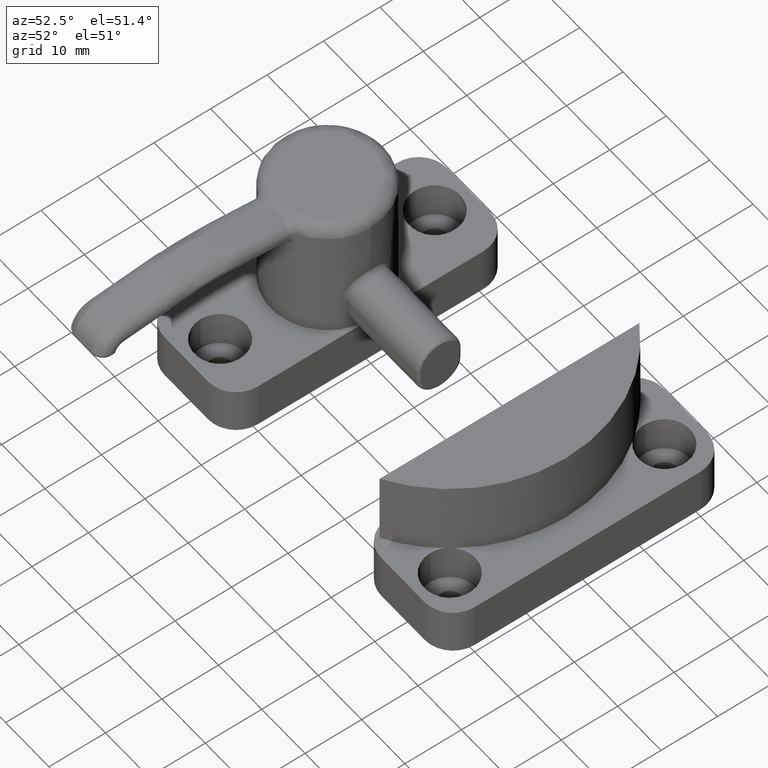
[diagram: clean part render]
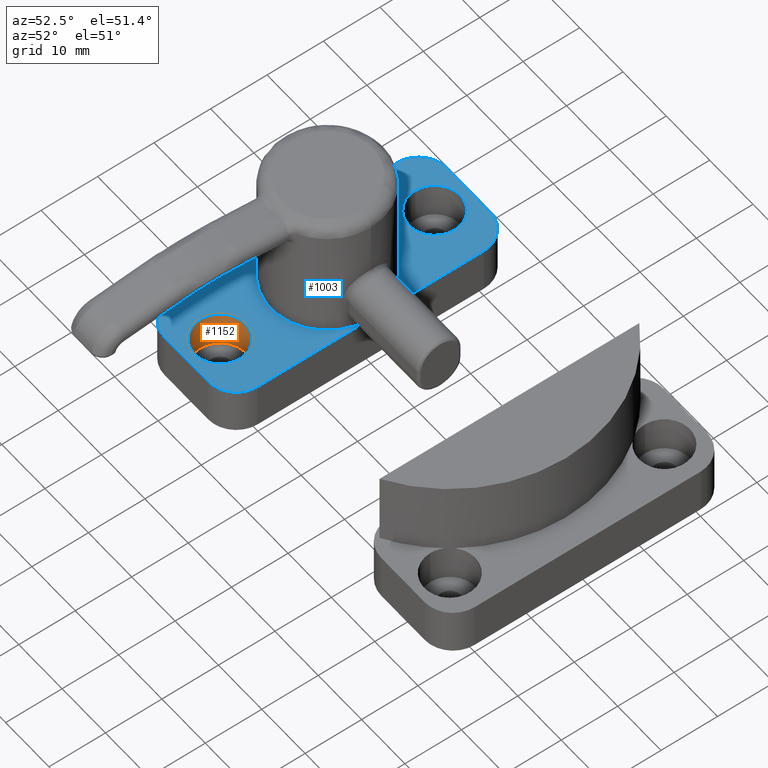
[diagram: same view with the hole feature highlighted: cylindrical wall and planar end face, labeled with their STEP entity ids]
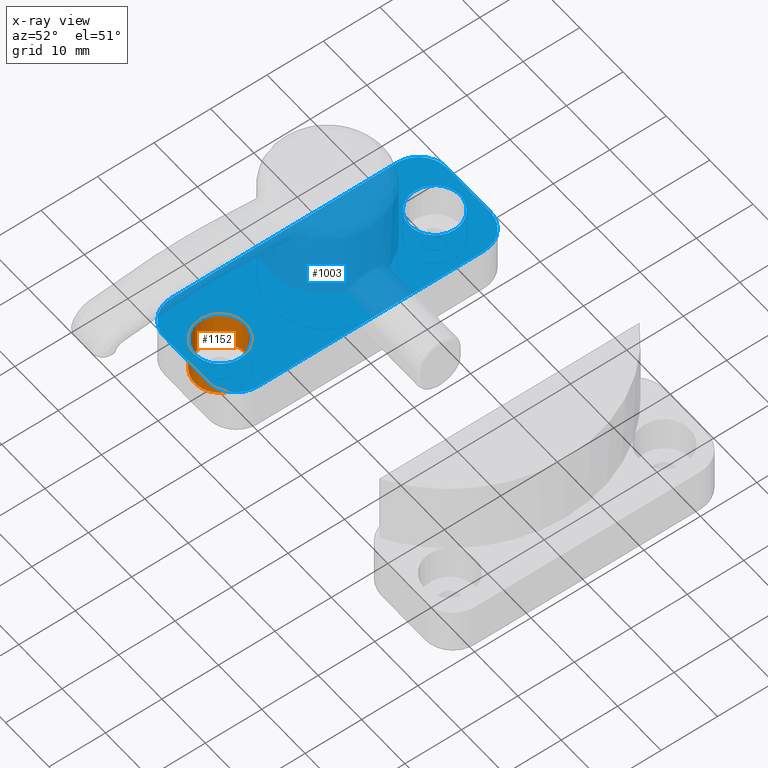
[diagram: x-ray of the same camera — body ghosted, the hole faces saturated]
A machine part, auxiliary view. The highlighted faces form one hole feature of diameter 9 mm: the cylindrical wall (entity #1152, orange) and its adjacent planar end face (entity #1003, blue) — they share a circular edge in the B-rep.
The next image is the same camera in x-ray (body ghosted, the hole faces saturated) — the bore reads through the body.
Wall:
#963=CARTESIAN_POINT('',(14.499999999999927,-19.0,8.500000000000000));
#964=VERTEX_POINT('',#963);
#965=CARTESIAN_POINT('',(5.499999999999926,-19.0,8.500000000000000));
#966=VERTEX_POINT('',#965);
#967=CARTESIAN_POINT('',(9.999999999999927,-19.0,8.500000000000000));
#968=DIRECTION('',(0.0,0.0,1.0));
#969=DIRECTION('',(-1.0,1.224647E-016,0.0));
#970=AXIS2_PLACEMENT_3D('',#967,#968,#969);
#971=CIRCLE('',#970,4.500000000000000);
#972=EDGE_CURVE('',#964,#966,#971,.T.);
#974=CARTESIAN_POINT('',(9.999999999999927,-19.0,8.500000000000000));
#975=DIRECTION('',(0.0,0.0,1.0));
#976=DIRECTION('',(-1.0,1.224647E-016,0.0));
#977=AXIS2_PLACEMENT_3D('',#974,#975,#976);
#978=CIRCLE('',#977,4.500000000000000);
#979=EDGE_CURVE('',#966,#964,#978,.T.);
#1118=CARTESIAN_POINT('',(9.999999999999927,-19.0,1.999999990000000));
#1119=DIRECTION('',(0.0,0.0,1.0));
#1120=DIRECTION('',(-1.0,1.224647E-016,0.0));
#1121=AXIS2_PLACEMENT_3D('',#1118,#1119,#1120);
#1122=CYLINDRICAL_SURFACE('',#1121,4.500000000000000);
#1123=CARTESIAN_POINT('',(14.499999999999927,-19.0,2.0));
#1124=VERTEX_POINT('',#1123);
#1125=CARTESIAN_POINT('',(5.499999999999926,-19.0,2.0));
#1126=VERTEX_POINT('',#1125);
#1127=CARTESIAN_POINT('',(9.999999999999927,-19.0,2.0));
#1128=DIRECTION('',(0.0,0.0,1.0));
#1129=DIRECTION('',(-1.0,1.224647E-016,0.0));
#1130=AXIS2_PLACEMENT_3D('',#1127,#1128,#1129);
#1131=CIRCLE('',#1130,4.500000000000000);
#1132=EDGE_CURVE('',#1124,#1126,#1131,.T.);
#1133=ORIENTED_EDGE('',*,*,#1132,.F.);
#1134=CARTESIAN_POINT('',(9.999999999999927,-19.0,2.0));
#1135=DIRECTION('',(0.0,0.0,1.0));
#1136=DIRECTION('',(-1.0,1.224647E-016,0.0));
#1137=AXIS2_PLACEMENT_3D('',#1134,#1135,#1136);
#1138=CIRCLE('',#1137,4.500000000000000);
#1139=EDGE_CURVE('',#1126,#1124,#1138,.T.);
#1140=ORIENTED_EDGE('',*,*,#1139,.F.);
#1141=CARTESIAN_POINT('',(5.499999999999926,-19.0,8.500000000000000));
#1142=DIRECTION('',(0.0,0.0,-1.0));
#1143=VECTOR('',#1142,6.500000000000000);
#1144=LINE('',#1141,#1143);
#1145=EDGE_CURVE('',#966,#1126,#1144,.T.);
#1146=ORIENTED_EDGE('',*,*,#1145,.F.);
#1147=ORIENTED_EDGE('',*,*,#979,.T.);
#1148=ORIENTED_EDGE('',*,*,#972,.T.);
#1149=ORIENTED_EDGE('',*,*,#1145,.T.);
#1150=EDGE_LOOP('',(#1133,#1140,#1146,#1147,#1148,#1149));
#1151=FACE_OUTER_BOUND('',#1150,.T.);
#1152=ADVANCED_FACE('',(#1151),#1122,.F.);
End face:
#871=CARTESIAN_POINT('',(14.999999999999932,24.999999999999996,8.500000000000000));
#872=VERTEX_POINT('',#871);
#873=CARTESIAN_POINT('',(19.999999999999932,19.999999999999996,8.500000000000000));
#874=VERTEX_POINT('',#873);
#875=CARTESIAN_POINT('',(14.999999999999931,19.999999999999996,8.500000000000000));
#876=DIRECTION('',(0.0,0.0,-1.0));
#877=DIRECTION('',(1.224647E-016,1.0,0.0));
#878=AXIS2_PLACEMENT_3D('',#875,#876,#877);
#879=CIRCLE('',#878,5.0);
#880=EDGE_CURVE('',#872,#874,#879,.T.);
#898=CARTESIAN_POINT('',(22.000120000110588,30.000120000159509,8.500000000000000));
#899=DIRECTION('',(0.0,0.0,1.0));
#900=DIRECTION('',(-1.0,0.0,0.0));
#901=AXIS2_PLACEMENT_3D('',#898,#899,#900);
#902=PLANE('',#901);
#903=CARTESIAN_POINT('',(2.449294E-015,20.0,8.500000000000000));
#904=VERTEX_POINT('',#903);
#905=CARTESIAN_POINT('',(-2.449294E-015,-20.0,8.500000000000000));
#906=VERTEX_POINT('',#905);
#907=CARTESIAN_POINT('',(2.449294E-015,20.0,8.500000000000000));
#908=DIRECTION('',(0.0,-1.0,0.0));
#909=VECTOR('',#908,40.0);
#910=LINE('',#907,#909);
#911=EDGE_CURVE('',#904,#906,#910,.T.);
#912=ORIENTED_EDGE('',*,*,#911,.T.);
#913=CARTESIAN_POINT('',(4.999999999999997,-25.0,8.500000000000000));
#914=VERTEX_POINT('',#913);
#915=CARTESIAN_POINT('',(4.999999999999997,-20.0,8.500000000000000));
#916=DIRECTION('',(0.0,0.0,-1.0));
#917=DIRECTION('',(-1.224647E-016,-1.0,0.0));
#918=AXIS2_PLACEMENT_3D('',#915,#916,#917);
#919=CIRCLE('',#918,5.0);
#920=EDGE_CURVE('',#914,#906,#919,.T.);
#921=ORIENTED_EDGE('',*,*,#920,.F.);
#922=CARTESIAN_POINT('',(14.999999999999925,-25.000000000000004,8.500000000000000));
#923=VERTEX_POINT('',#922);
#924=CARTESIAN_POINT('',(4.999999999999997,-25.0,8.500000000000000));
#925=DIRECTION('',(1.0,0.0,0.0));
#926=VECTOR('',#925,9.999999999999929);
#927=LINE('',#924,#926);
#928=EDGE_CURVE('',#914,#923,#927,.T.);
#929=ORIENTED_EDGE('',*,*,#928,.T.);
#930=CARTESIAN_POINT('',(19.999999999999925,-20.000000000000004,8.500000000000000));
#931=VERTEX_POINT('',#930);
#932=CARTESIAN_POINT('',(14.999999999999927,-20.000000000000004,8.500000000000000));
#933=DIRECTION('',(0.0,0.0,-1.0));
#934=DIRECTION('',(1.0,-1.224647E-016,0.0));
#935=AXIS2_PLACEMENT_3D('',#932,#933,#934);
#936=CIRCLE('',#935,5.0);
#937=EDGE_CURVE('',#931,#923,#936,.T.);
#938=ORIENTED_EDGE('',*,*,#937,.F.);
#939=CARTESIAN_POINT('',(19.999999999999925,-20.000000000000004,8.500000000000000));
#940=DIRECTION('',(0.0,1.0,0.0));
#941=VECTOR('',#940,40.0);
#942=LINE('',#939,#941);
#943=EDGE_CURVE('',#931,#874,#942,.T.);
#944=ORIENTED_EDGE('',*,*,#943,.T.);
#945=ORIENTED_EDGE('',*,*,#880,.F.);
#946=CARTESIAN_POINT('',(5.000000000000003,25.0,8.500000000000000));
#947=VERTEX_POINT('',#946);
#948=CARTESIAN_POINT('',(14.999999999999932,24.999999999999996,8.500000000000000));
#949=DIRECTION('',(-1.0,0.0,0.0));
#950=VECTOR('',#949,9.999999999999929);
#951=LINE('',#948,#950);
#952=EDGE_CURVE('',#872,#947,#951,.T.);
#953=ORIENTED_EDGE('',*,*,#952,.T.);
#954=CARTESIAN_POINT('',(5.000000000000003,20.0,8.500000000000000));
#955=DIRECTION('',(0.0,0.0,-1.0));
#956=DIRECTION('',(-1.0,1.224647E-016,0.0));
#957=AXIS2_PLACEMENT_3D('',#954,#955,#956);
#958=CIRCLE('',#957,5.0);
#959=EDGE_CURVE('',#904,#947,#958,.T.);
#960=ORIENTED_EDGE('',*,*,#959,.F.);
#961=EDGE_LOOP('',(#912,#921,#929,#938,#944,#945,#953,#960));
#962=FACE_OUTER_BOUND('',#961,.T.);
#963=CARTESIAN_POINT('',(14.499999999999927,-19.0,8.500000000000000));
#964=VERTEX_POINT('',#963);
#965=CARTESIAN_POINT('',(5.499999999999926,-19.0,8.500000000000000));
#966=VERTEX_POINT('',#965);
#967=CARTESIAN_POINT('',(9.999999999999927,-19.0,8.500000000000000));
#968=DIRECTION('',(0.0,0.0,1.0));
#969=DIRECTION('',(-1.0,1.224647E-016,0.0));
#970=AXIS2_PLACEMENT_3D('',#967,#968,#969);
#971=CIRCLE('',#970,4.500000000000000);
#972=EDGE_CURVE('',#964,#966,#971,.T.);
#973=ORIENTED_EDGE('',*,*,#972,.F.);
#974=CARTESIAN_POINT('',(9.999999999999927,-19.0,8.500000000000000));
#975=DIRECTION('',(0.0,0.0,1.0));
#976=DIRECTION('',(-1.0,1.224647E-016,0.0));
#977=AXIS2_PLACEMENT_3D('',#974,#975,#976);
#978=CIRCLE('',#977,4.500000000000000);
#979=EDGE_CURVE('',#966,#964,#978,.T.);
#980=ORIENTED_EDGE('',*,*,#979,.F.);
#981=EDGE_LOOP('',(#973,#980));
#982=FACE_BOUND('',#981,.T.);
#983=CARTESIAN_POINT('',(14.499999999999931,19.0,8.500000000000000));
#984=VERTEX_POINT('',#983);
#985=CARTESIAN_POINT('',(5.499999999999932,19.0,8.500000000000000));
#986=VERTEX_POINT('',#985);
#987=CARTESIAN_POINT('',(9.999999999999931,19.0,8.500000000000000));
#988=DIRECTION('',(0.0,0.0,1.0));
#989=DIRECTION('',(-1.0,1.224647E-016,0.0));
#990=AXIS2_PLACEMENT_3D('',#987,#988,#989);
#991=CIRCLE('',#990,4.500000000000000);
#992=EDGE_CURVE('',#984,#986,#991,.T.);
#993=ORIENTED_EDGE('',*,*,#992,.F.);
#994=CARTESIAN_POINT('',(9.999999999999931,19.0,8.500000000000000));
#995=DIRECTION('',(0.0,0.0,1.0));
#996=DIRECTION('',(-1.0,1.224647E-016,0.0));
#997=AXIS2_PLACEMENT_3D('',#994,#995,#996);
#998=CIRCLE('',#997,4.500000000000000);
#999=EDGE_CURVE('',#986,#984,#998,.T.);
#1000=ORIENTED_EDGE('',*,*,#999,.F.);
#1001=EDGE_LOOP('',(#993,#1000));
#1002=FACE_BOUND('',#1001,.T.);
#1003=ADVANCED_FACE('',(#962,#982,#1002),#902,.T.);